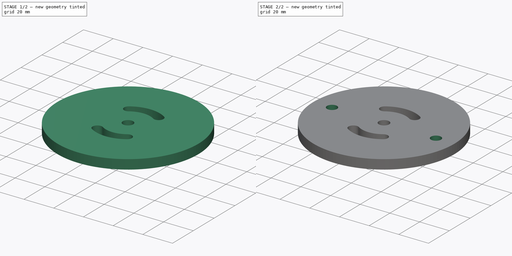
[diagram: build sequence overview — one tinted view per stage of 2, left to right]
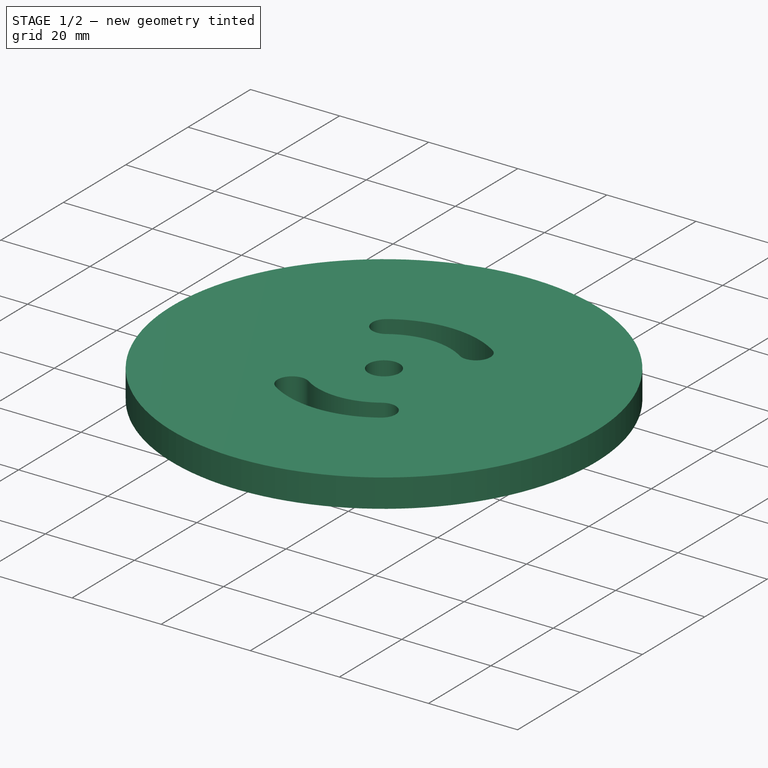
[diagram: stage 1 of 2 — iso view after this stage's code; geometry added in this stage tinted green]
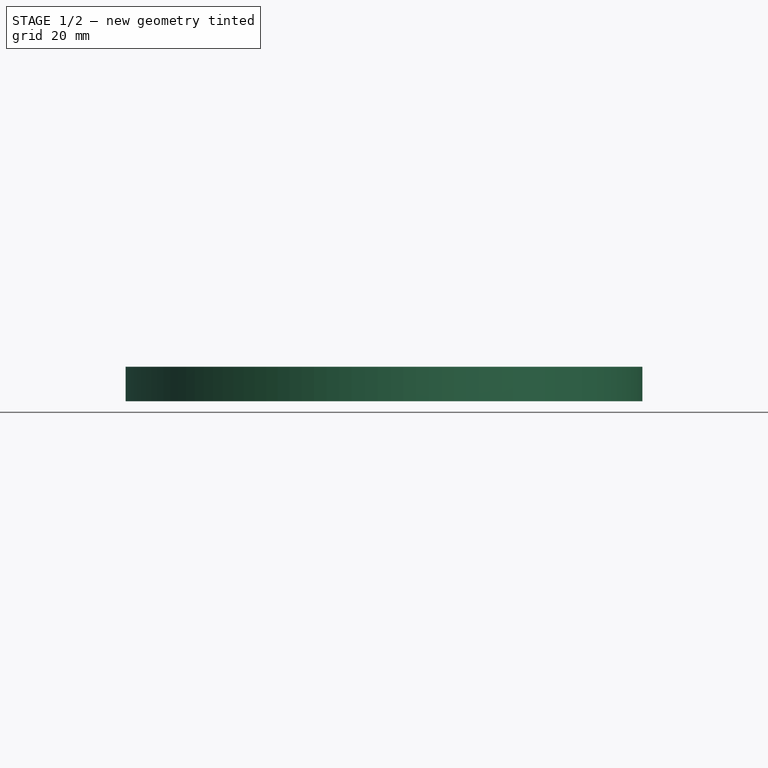
[diagram: stage 1 of 2 — front view after this stage's code; geometry added in this stage tinted green]
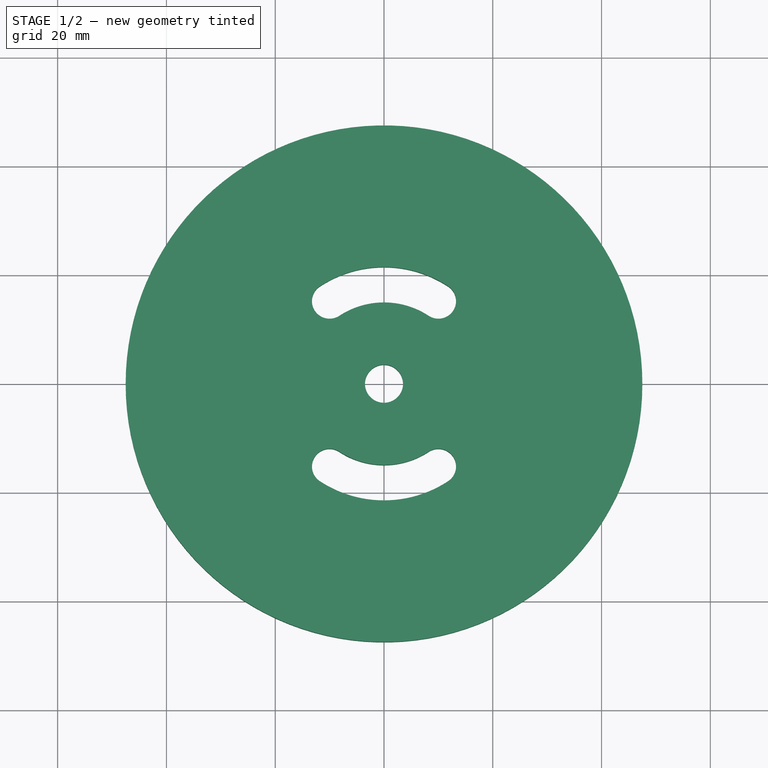
[diagram: stage 1 of 2 — top view after this stage's code; geometry added in this stage tinted green]
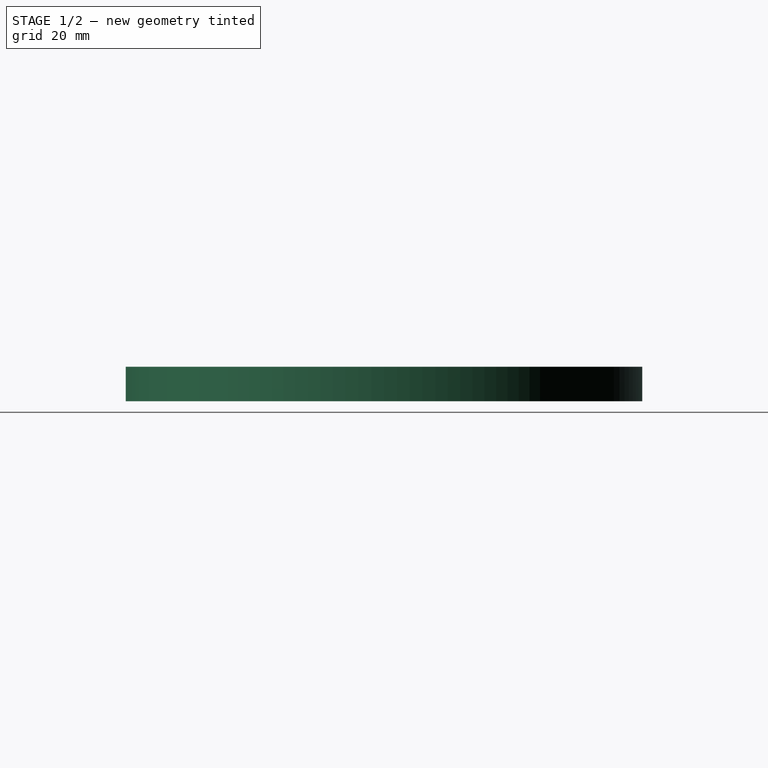
[diagram: stage 1 of 2 — right view after this stage's code; geometry added in this stage tinted green]
FCSTD DOCUMENT  (FreeCAD 0.21R33771 (Git))
Label: Anchor Plate
License: All rights reserved
LicenseURL: http://en.wikipedia.org/wiki/All_rights_reserved
objects: PartDesign::CoordinateSystem×3, Sketcher::SketchObject×2, PartDesign::Pad×1, PartDesign::Hole×1, PartDesign::Body×1
note: 10 computed .brp shape members not serialized (recipe doc carries the construction recipe); baked Part::Feature solids carry a one-line shape summary decoded from their .brp

FEATURE [Sketcher::SketchObject] Sketch
  FullyConstrained = true
  MapMode = 5
  Support = -> [XY_Plane]
  sketch-geometry (2):
    g0: Circle CenterX=-35 CenterY=0 CenterZ=0 NormalX=0 NormalY=0 NormalZ=1 AngleXU=0 Radius=3.4
    g1: Circle CenterX=35 CenterY=1e-15 CenterZ=0 NormalX=0 NormalY=0 NormalZ=1 AngleXU=0 Radius=3.4
  constraints (5):
    c: PointOnObject(g0,g-1)
    c: Diameter(g1) = 6.8
    c: Equal(g1,g0)
    c: DistanceX(g-1,g1) = 35
    c: Symmetric(g1,g0,g-1)
FEATURE [Sketcher::SketchObject] Sketch001
  FullyConstrained = true
  MapMode = 5
  Support = -> [XY_Plane]
  expr: Constraints[16] = sqrt(35 ^ 2 + 10 ^ 2) / 2
  sketch-geometry (10):
    g0: Circle CenterX=0 CenterY=0 CenterZ=0 NormalX=0 NormalY=0 NormalZ=1 AngleXU=0 Radius=47.5
    g1: Circle CenterX=0 CenterY=0 CenterZ=0 NormalX=0 NormalY=0 NormalZ=1 AngleXU=0 Radius=3.5
    g2: ArcOfCircle CenterX=0 CenterY=0 CenterZ=0 NormalX=0 NormalY=0 NormalZ=1 AngleXU=0 Radius=14.9503 StartAngle=0.9891 EndAngle=2.15249
    g3: ArcOfCircle CenterX=0 CenterY=0 CenterZ=0 NormalX=0 NormalY=0 NormalZ=1 AngleXU=0 Radius=21.4503 StartAngle=0.9891 EndAngle=2.15249
    g4: ArcOfCircle CenterX=0 CenterY=0 CenterZ=0 NormalX=0 NormalY=0 NormalZ=1 AngleXU=0 Radius=14.9503 StartAngle=4.13069 EndAngle=5.29409
    g5: ArcOfCircle CenterX=0 CenterY=0 CenterZ=0 NormalX=0 NormalY=0 NormalZ=1 AngleXU=0 Radius=21.4503 StartAngle=4.13069 EndAngle=5.29409
    g6: ArcOfCircle CenterX=-10 CenterY=15.2069 CenterZ=0 NormalX=0 NormalY=0 NormalZ=1 AngleXU=0 Radius=3.25 StartAngle=2.15249 EndAngle=5.29409
    g7: ArcOfCircle CenterX=10 CenterY=15.2069 CenterZ=0 NormalX=0 NormalY=0 NormalZ=1 AngleXU=0 Radius=3.25 StartAngle=4.13069 EndAngle=7.27229
    g8: ArcOfCircle CenterX=-10 CenterY=-15.2069 CenterZ=0 NormalX=0 NormalY=0 NormalZ=1 AngleXU=0 Radius=3.25 StartAngle=0.9891 EndAngle=4.13069
    g9: ArcOfCircle CenterX=10 CenterY=-15.2069 CenterZ=0 NormalX=0 NormalY=0 NormalZ=1 AngleXU=0 Radius=3.25 StartAngle=5.29409 EndAngle=8.43568
  constraints (23):
    c: Coincident(g0,g-1)
    c: Diameter(g0) = 95
    c: Coincident(g1,g0)
    c: Diameter(g1) = 7
    c: Coincident(g2,g0)
    c: Coincident(g3,g0)
    c: Coincident(g4,g0)
    c: Coincident(g5,g0)
    c: Tangent(g7,g3) = -1.5708
    c: Tangent(g6,g3) = -1.5708
    c: Tangent(g6,g2) = 1.5708
    c: Tangent(g7,g2) = 1.5708
    c: Tangent(g8,g4) = 1.5708
    c: Tangent(g9,g4) = 1.5708
    c: Tangent(g9,g5) = -1.5708
    c: Tangent(g8,g5) = -1.5708
    c: Distance(g0,g7) = 18.2003
    c: Symmetric(g8,g7,g0)
    c: Horizontal(g8,g9)
    c: Horizontal(g6,g7)
    c: Diameter(g7) = 6.5
    c: Equal(g8,g7)
    c: DistanceX(g6,g7) = 20
FEATURE [PartDesign::Pad] Pad
  Direction = (0,0,1)
  Length = 6.35
  Length2 = 10
  Profile = -> Sketch001
  ReferenceAxis = -> Sketch001 [N_Axis]
  Type = 0
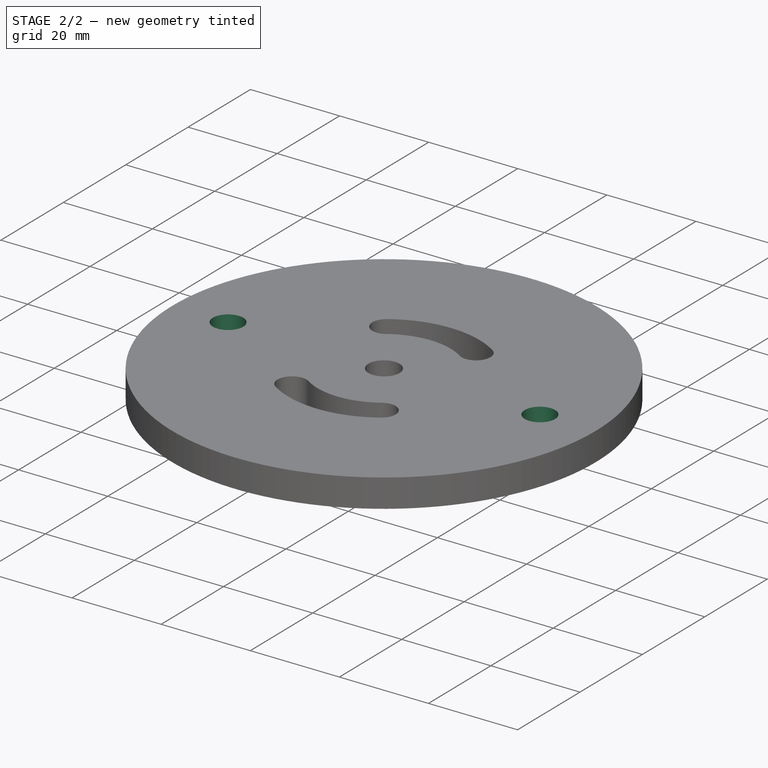
[diagram: stage 2 of 2 — iso view after this stage's code; geometry added in this stage tinted green]
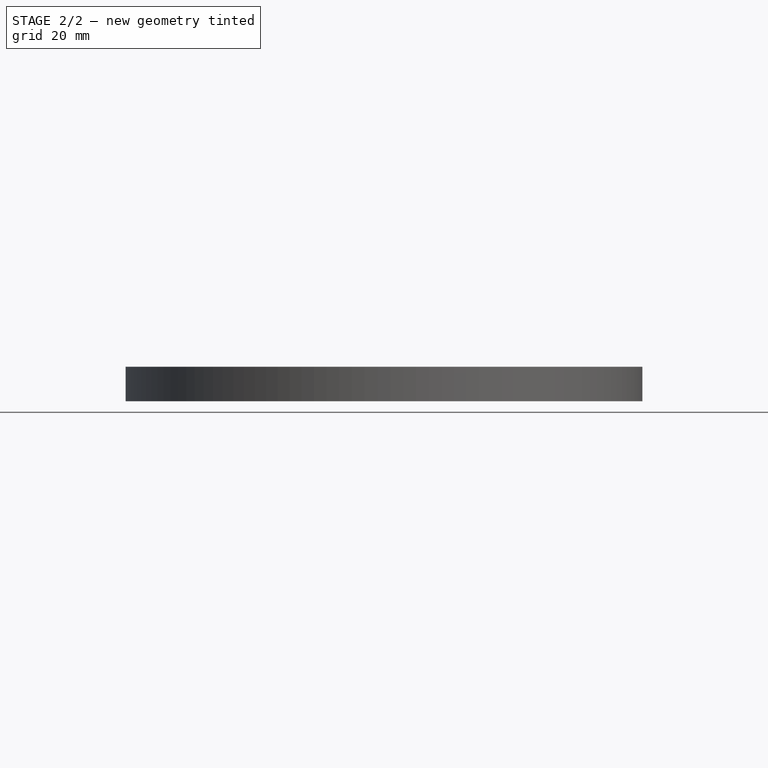
[diagram: stage 2 of 2 — front view after this stage's code; geometry added in this stage tinted green]
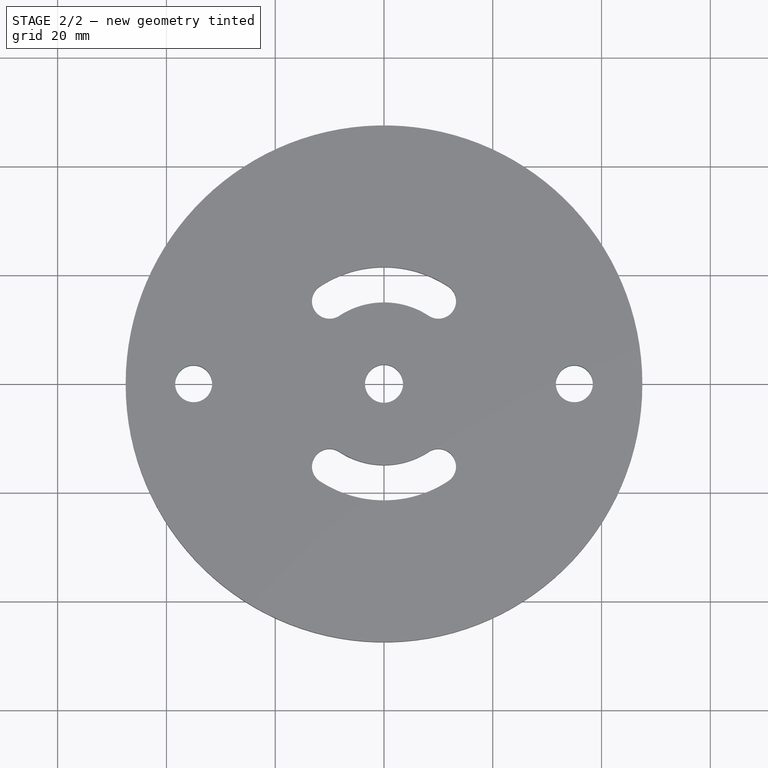
[diagram: stage 2 of 2 — top view after this stage's code; geometry added in this stage tinted green]
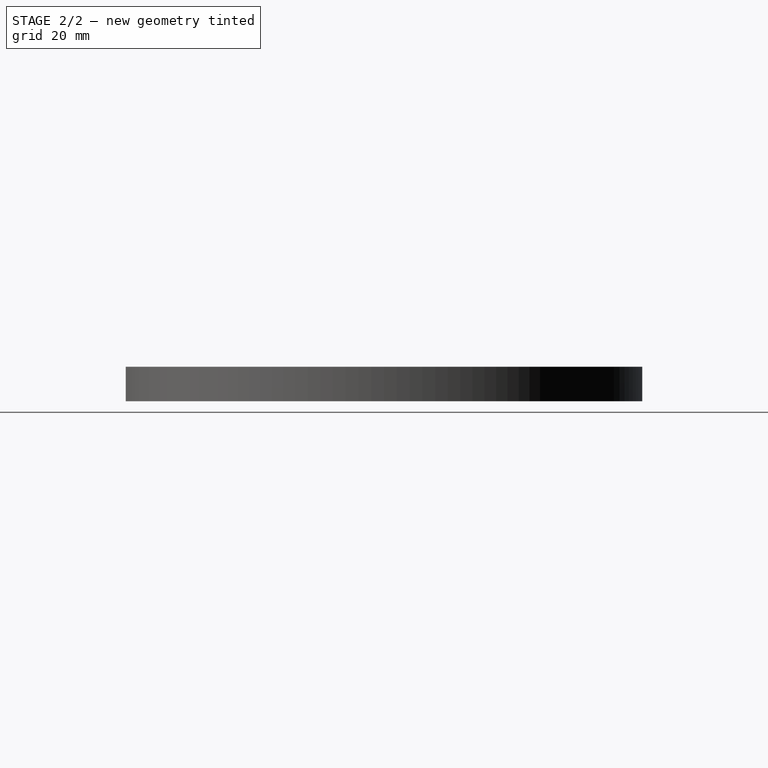
[diagram: stage 2 of 2 — right view after this stage's code; geometry added in this stage tinted green]
FEATURE [PartDesign::Hole] Hole
  BaseFeature = -> Pad
  CustomThreadClearance = 0
  Depth = 271.677
  DepthType = 1
  Diameter = 6.8
  DrillForDepth = false
  DrillPoint = 1
  DrillPointAngle = 118
  HoleCutCountersinkAngle = 90
  HoleCutCustomValues = false
  HoleCutDepth = 0
  HoleCutDiameter = 6.1
  HoleCutType = 0
  ModelThread = false
  Profile = -> Sketch
  Reversed = true
  Tapered = false
  TaperedAngle = 90
  ThreadClass = 0
  ThreadDepth = 271.677
  ThreadDepthType = 0
  ThreadDirection = 0
  ThreadFit = 0
  ThreadSize = 16
  ThreadType = 1
  Threaded = true
  UseCustomThreadClearance = false
FEATURE [PartDesign::CoordinateSystem] Local_CS
  AttacherType = Attacher::AttachEngine3D
  MapMode = 5
  Placement = pos=(0,0,6.35) rot=(0,0,1;0rad)
  Support = -> [Hole]
FEATURE [PartDesign::CoordinateSystem] Local_CS001
  AttacherType = Attacher::AttachEngine3D
  MapMode = 11
  Placement = pos=(-35,0,0) rot=(0.707107,0.707107,0;3.14159rad)
FEATURE [PartDesign::CoordinateSystem] Local_CS002
  AttacherType = Attacher::AttachEngine3D
  MapMode = 11
  Placement = pos=(35,1e-15,0) rot=(0.707107,0.707107,0;3.14159rad)
FEATURE [PartDesign::Body] Body  label="Anchor Plate"
  Group = -> [Sketch,Sketch001,Pad,Hole,Local_CS,Local_CS001,Local_CS002]
  Origin = -> Origin
  Tip = -> Hole
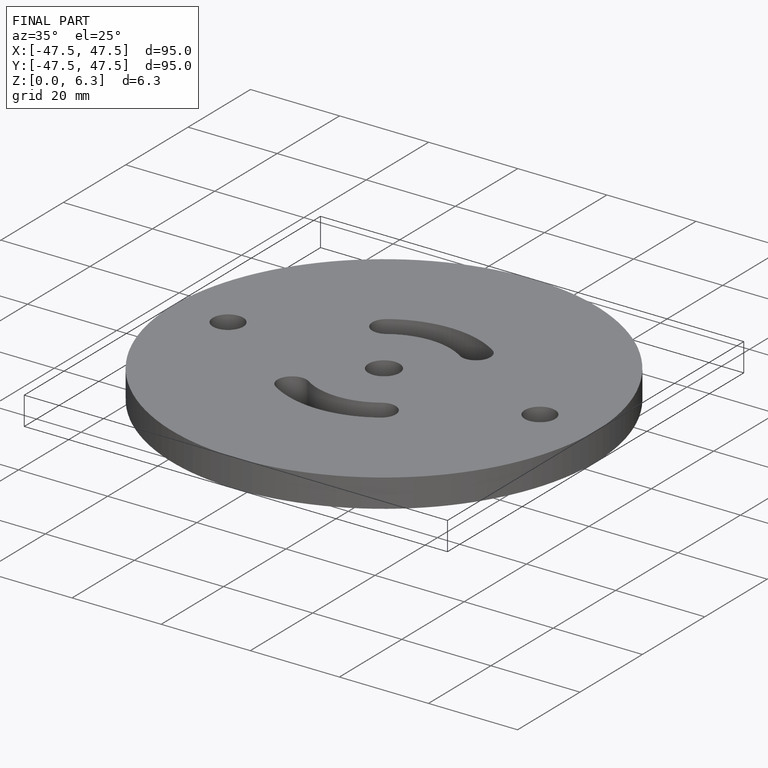
[diagram: finished part — iso view with bounding-box wireframe]
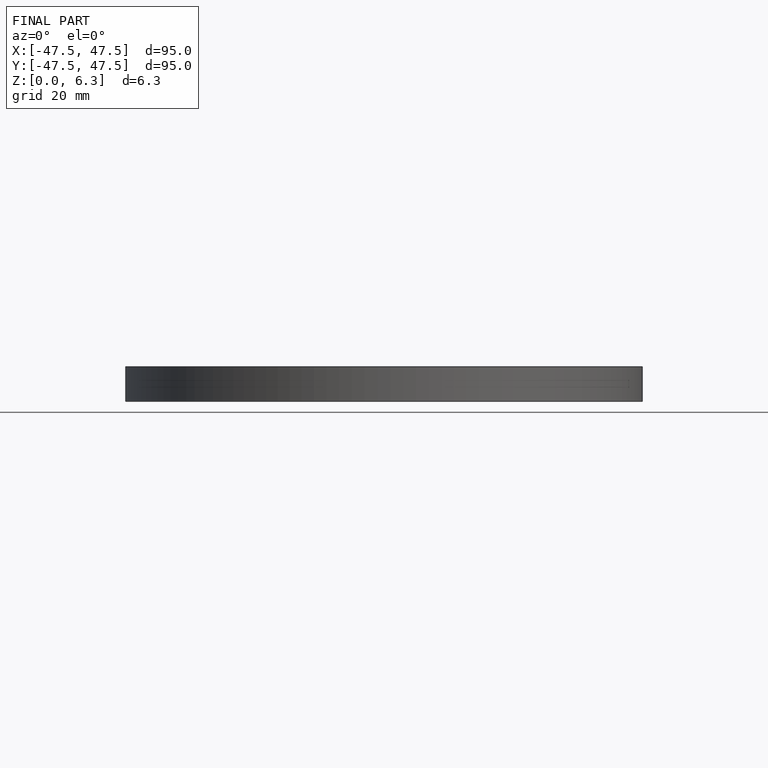
[diagram: finished part — front view with bounding-box wireframe]
